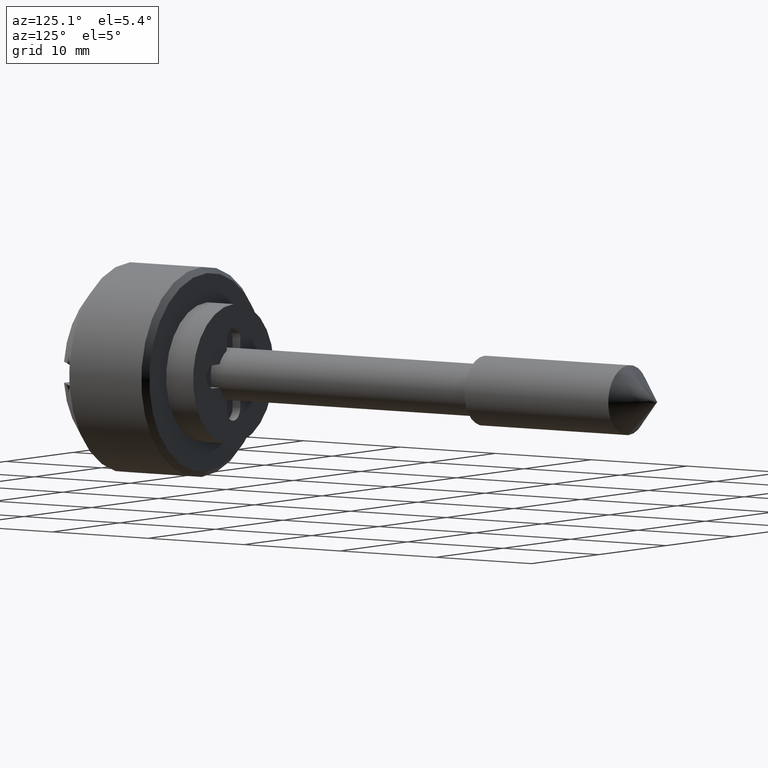
[diagram: clean part render]
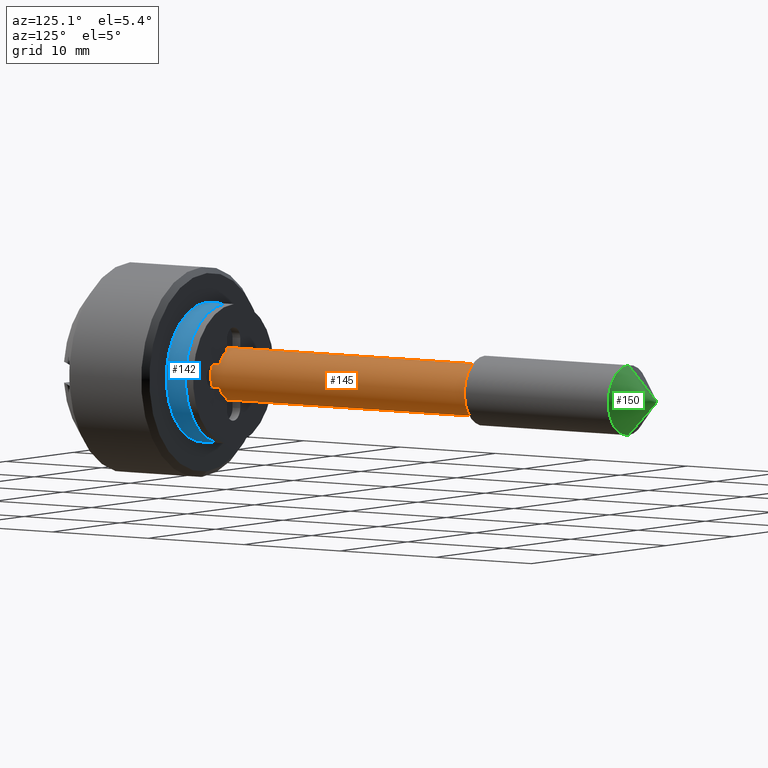
[diagram: same view with three faces highlighted in distinct colors, each labeled with its STEP entity id]
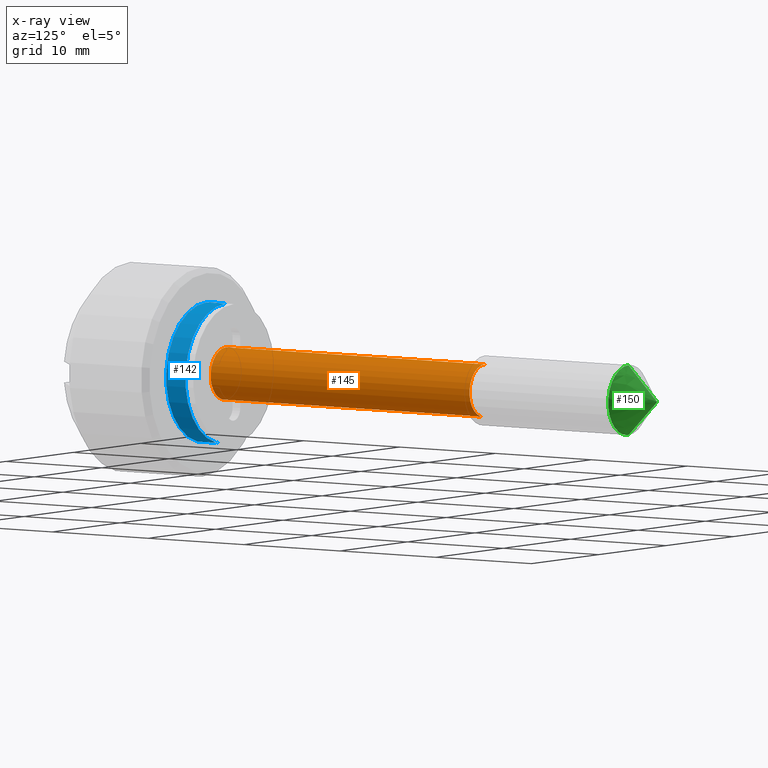
[diagram: x-ray of the same camera — body ghosted, the three highlighted faces saturated]
A machine part, auxiliary view with three faces highlighted in distinct colors.
The next image is the same camera in x-ray (body ghosted, the three faces saturated) — at least one of them is partly hidden behind the body in this view.
Their STEP definitions:

[orange] entity #145 — the highlighted cylindrical surface (edge-blend (fillet) strip) has radius 2.25 mm, axis along (0, 1, 0).
#145=ADVANCED_FACE('',(#490),#489,.T.);
#489=CYLINDRICAL_SURFACE('',#764,2.25000000000E+00);
#490=FACE_OUTER_BOUND('',#765,.T.);
#761=CARTESIAN_POINT('',(1.00000000000E+03,0.00000000000E+00,0.00000000000E+00));
#762=DIRECTION('',(1.00000000000E+00,-0.00000000000E+00,-0.00000000000E+00));
#763=DIRECTION('',(-0.00000000000E+00,-0.00000000000E+00,-1.00000000000E+00));
#764=AXIS2_PLACEMENT_3D('',#761,#762,#763);
#765=EDGE_LOOP('',(#988,#989,#990,#991));
#988=ORIENTED_EDGE('',*,*,#1090,.T.);
#989=ORIENTED_EDGE('',*,*,#1116,.T.);
#990=ORIENTED_EDGE('',*,*,#1095,.F.);
#991=ORIENTED_EDGE('',*,*,#1117,.F.);
#1090=EDGE_CURVE('',#1532,#1533,#1534,.T.);
#1095=EDGE_CURVE('',#1561,#1560,#1568,.T.);
#1116=EDGE_CURVE('',#1533,#1560,#1706,.T.);
#1117=EDGE_CURVE('',#1532,#1561,#1712,.T.);
#1532=VERTEX_POINT('',#2041);
#1533=VERTEX_POINT('',#2042);
#1534=CIRCLE('',#2046,2.25000000000E+00);
#1560=VERTEX_POINT('',#2061);
#1561=VERTEX_POINT('',#2062);
#1568=CIRCLE('',#2070,2.25000000000E+00);
#1706=(BOUNDED_CURVE() B_SPLINE_CURVE(1,(#2151,#2152),.UNSPECIFIED.,.F.,.F.) B_SPLINE_CURVE_WITH_KNOTS((2,2),(8.33333328360E-02,9.16666665505E-01),.UNSPECIFIED.) CURVE() GEOMETRIC_REPRESENTATION_ITEM() RATIONAL_B_SPLINE_CURVE((1.00000000000E+00,1.00000000000E+00)) REPRESENTATION_ITEM('') );
#1712=(BOUNDED_CURVE() B_SPLINE_CURVE(1,(#2153,#2154),.UNSPECIFIED.,.F.,.F.) B_SPLINE_CURVE_WITH_KNOTS((2,2),(8.33333333333E-02,9.16666666667E-01),.UNSPECIFIED.) CURVE() GEOMETRIC_REPRESENTATION_ITEM() RATIONAL_B_SPLINE_CURVE((7.50000000000E-01,7.50000000000E-01)) REPRESENTATION_ITEM('') );
#2041=CARTESIAN_POINT('',(0.00000000000E+00,1.48029736617E-16,2.25000000000E+00));
#2042=CARTESIAN_POINT('',(0.00000000000E+00,0.00000000000E+00,-2.25000000000E+00));
#2043=CARTESIAN_POINT('',(0.00000000000E+00,0.00000000000E+00,0.00000000000E+00));
#2044=DIRECTION('',(1.00000000000E+00,0.00000000000E+00,0.00000000000E+00));
#2045=DIRECTION('',(0.00000000000E+00,-1.22460635382E-16,-1.00000000000E+00));
#2046=AXIS2_PLACEMENT_3D('',#2043,#2044,#2045);
#2061=CARTESIAN_POINT('',(2.70000000000E+01,0.00000000000E+00,-2.25000000000E+00));
#2062=CARTESIAN_POINT('',(2.70000000000E+01,1.48029736617E-16,2.25000000000E+00));
#2067=CARTESIAN_POINT('',(2.70000000000E+01,0.00000000000E+00,0.00000000000E+00));
#2068=DIRECTION('',(1.00000000000E+00,0.00000000000E+00,0.00000000000E+00));
#2069=DIRECTION('',(0.00000000000E+00,-1.22460635382E-16,-1.00000000000E+00));
#2070=AXIS2_PLACEMENT_3D('',#2067,#2068,#2069);
#2151=CARTESIAN_POINT('',(-1.61148925315E-08,0.00000000000E+00,-2.25000000000E+00));
#2152=CARTESIAN_POINT('',(2.69999999624E+01,0.00000000000E+00,-2.25000000000E+00));
#2153=CARTESIAN_POINT('',(0.00000000000E+00,-1.48029736617E-16,2.25000000000E+00));
#2154=CARTESIAN_POINT('',(2.70000000000E+01,-1.48029736617E-16,2.25000000000E+00));

[blue] entity #142 — the highlighted cylindrical surface (partial cylindrical patch) has radius 6 mm, axis along (0, -1, -0).
#142=ADVANCED_FACE('',(#460),#459,.T.);
#459=CYLINDRICAL_SURFACE('',#749,6.00000000000E+00);
#460=FACE_OUTER_BOUND('',#750,.T.);
#746=CARTESIAN_POINT('',(-1.00000000000E+03,0.00000000000E+00,0.00000000000E+00));
#747=DIRECTION('',(-1.00000000000E+00,-0.00000000000E+00,-0.00000000000E+00));
#748=DIRECTION('',(0.00000000000E+00,1.22464679915E-16,-1.00000000000E+00));
#749=AXIS2_PLACEMENT_3D('',#746,#747,#748);
#750=EDGE_LOOP('',(#976,#977,#978,#979));
#976=ORIENTED_EDGE('',*,*,#1086,.F.);
#977=ORIENTED_EDGE('',*,*,#1114,.F.);
#978=ORIENTED_EDGE('',*,*,#1088,.F.);
#979=ORIENTED_EDGE('',*,*,#1115,.T.);
#1086=EDGE_CURVE('',#1504,#1505,#1506,.T.);
#1088=EDGE_CURVE('',#1518,#1519,#1520,.T.);
#1114=EDGE_CURVE('',#1519,#1504,#1694,.T.);
#1115=EDGE_CURVE('',#1518,#1505,#1700,.T.);
#1504=VERTEX_POINT('',#2021);
#1505=VERTEX_POINT('',#2022);
#1506=CIRCLE('',#2026,6.00000000000E+00);
#1518=VERTEX_POINT('',#2031);
#1519=VERTEX_POINT('',#2032);
#1520=CIRCLE('',#2036,6.00000000000E+00);
#1694=(BOUNDED_CURVE() B_SPLINE_CURVE(1,(#2147,#2148),.UNSPECIFIED.,.F.,.F.) B_SPLINE_CURVE_WITH_KNOTS((2,2),(8.33333134656E-02,9.16666653270E-01),.UNSPECIFIED.) CURVE() GEOMETRIC_REPRESENTATION_ITEM() RATIONAL_B_SPLINE_CURVE((1.00000000000E+00,1.00000000000E+00)) REPRESENTATION_ITEM('') );
#1700=(BOUNDED_CURVE() B_SPLINE_CURVE(1,(#2149,#2150),.UNSPECIFIED.,.F.,.F.) B_SPLINE_CURVE_WITH_KNOTS((2,2),(8.33333333333E-02,9.16666666667E-01),.UNSPECIFIED.) CURVE() GEOMETRIC_REPRESENTATION_ITEM() RATIONAL_B_SPLINE_CURVE((7.50000000000E-01,7.50000000000E-01)) REPRESENTATION_ITEM('') );
#2021=CARTESIAN_POINT('',(-2.00000000000E+00,0.00000000000E+00,-6.00000000000E+00));
#2022=CARTESIAN_POINT('',(-2.00000000000E+00,1.18423789293E-15,6.00000000000E+00));
#2023=CARTESIAN_POINT('',(-2.00000000000E+00,0.00000000000E+00,0.00000000000E+00));
#2024=DIRECTION('',(-1.00000000000E+00,0.00000000000E+00,-0.00000000000E+00));
#2025=DIRECTION('',(0.00000000000E+00,-1.22460635382E-16,-1.00000000000E+00));
#2026=AXIS2_PLACEMENT_3D('',#2023,#2024,#2025);
#2031=CARTESIAN_POINT('',(0.00000000000E+00,0.00000000000E+00,6.00000000000E+00));
#2032=CARTESIAN_POINT('',(0.00000000000E+00,1.18423789293E-15,-6.00000000000E+00));
#2033=CARTESIAN_POINT('',(0.00000000000E+00,0.00000000000E+00,0.00000000000E+00));
#2034=DIRECTION('',(1.00000000000E+00,0.00000000000E+00,-0.00000000000E+00));
#2035=DIRECTION('',(0.00000000000E+00,-1.22460635382E-16,1.00000000000E+00));
#2036=AXIS2_PLACEMENT_3D('',#2033,#2034,#2035);
#2147=CARTESIAN_POINT('',(4.76825442464E-08,7.34788079488E-16,-6.00000000000E+00));
#2148=CARTESIAN_POINT('',(-1.99999996785E+00,7.34788079488E-16,-6.00000000000E+00));
#2149=CARTESIAN_POINT('',(3.70074341542E-17,0.00000000000E+00,6.00000000000E+00));
#2150=CARTESIAN_POINT('',(-2.00000000000E+00,0.00000000000E+00,6.00000000000E+00));

[green] entity #150 — the highlighted face is a freeform B-spline surface patch.
#150=ADVANCED_FACE('',(#540),#539,.T.);
#539=( BOUNDED_SURFACE() B_SPLINE_SURFACE( 2,1,((#798,#799),(#800,#801),(#802,#803),(#804,#805),(#806,#807)), .UNSPECIFIED.,.F.,.F.,.F.) B_SPLINE_SURFACE_WITH_KNOTS((3,2,3),(2,2),(0.00000000000E+00,5.00000000000E-01,1.00000000000E+00),(0.00000000000E+00,1.00000000000E+00), .UNSPECIFIED. ) GEOMETRIC_REPRESENTATION_ITEM() RATIONAL_B_SPLINE_SURFACE(((1.00000000000E+00,1.00000000000E+00),(7.07106781187E-01,7.07106781187E-01),(1.00000000000E+00,1.00000000000E+00),(7.07106781187E-01,7.07106781187E-01),(1.00000000000E+00,1.00000000000E+00))) REPRESENTATION_ITEM('') SURFACE() );
#540=FACE_OUTER_BOUND('',#808,.T.);
#798=CARTESIAN_POINT('',(4.50000000000E+01,0.00000000000E+00,0.00000000000E+00));
#799=CARTESIAN_POINT('',(4.07573593129E+01,-1.03914726748E-15,-4.24264068712E+00));
#800=CARTESIAN_POINT('',(4.50000000000E+01,0.00000000000E+00,0.00000000000E+00));
#801=CARTESIAN_POINT('',(4.07573593129E+01,-4.24264068712E+00,-4.24264068712E+00));
#802=CARTESIAN_POINT('',(4.50000000000E+01,0.00000000000E+00,0.00000000000E+00));
#803=CARTESIAN_POINT('',(4.07573593129E+01,-4.24264068712E+00,7.79360450612E-16));
#804=CARTESIAN_POINT('',(4.50000000000E+01,0.00000000000E+00,0.00000000000E+00));
#805=CARTESIAN_POINT('',(4.07573593129E+01,-4.24264068712E+00,4.24264068712E+00));
#806=CARTESIAN_POINT('',(4.50000000000E+01,0.00000000000E+00,0.00000000000E+00));
#807=CARTESIAN_POINT('',(4.07573593129E+01,5.19573633741E-16,4.24264068712E+00));
#808=EDGE_LOOP('',(#1016,#1017,#1018));
#1016=ORIENTED_EDGE('',*,*,#1124,.F.);
#1017=ORIENTED_EDGE('',*,*,#1125,.F.);
#1018=ORIENTED_EDGE('',*,*,#1126,.T.);
#1124=EDGE_CURVE('',#1756,#1757,#1758,.T.);
#1125=EDGE_CURVE('',#1764,#1756,#1765,.T.);
#1126=EDGE_CURVE('',#1764,#1757,#1771,.T.);
#1756=VERTEX_POINT('',#2173);
#1757=VERTEX_POINT('',#2174);
#1758=CIRCLE('',#2178,3.00000000000E+00);
#1764=VERTEX_POINT('',#2179);
#1765=(BOUNDED_CURVE() B_SPLINE_CURVE(1,(#2180,#2181),.UNSPECIFIED.,.F.,.F.) B_SPLINE_CURVE_WITH_KNOTS((2,2),(0.00000000000E+00,7.07106783987E-01),.UNSPECIFIED.) CURVE() GEOMETRIC_REPRESENTATION_ITEM() RATIONAL_B_SPLINE_CURVE((1.00000000000E+00,1.00000000000E+00)) REPRESENTATION_ITEM('') );
#1771=(BOUNDED_CURVE() B_SPLINE_CURVE(1,(#2182,#2183),.UNSPECIFIED.,.F.,.F.) B_SPLINE_CURVE_WITH_KNOTS((2,2),(0.00000000000E+00,7.07106780467E-01),.UNSPECIFIED.) CURVE() GEOMETRIC_REPRESENTATION_ITEM() RATIONAL_B_SPLINE_CURVE((7.50000000000E-01,7.50000000000E-01)) REPRESENTATION_ITEM('') );
#2173=CARTESIAN_POINT('',(4.20000000000E+01,-1.48029736617E-16,-3.00000000000E+00));
#2174=CARTESIAN_POINT('',(4.20000000000E+01,0.00000000000E+00,3.00000000000E+00));
#2175=CARTESIAN_POINT('',(4.20000000000E+01,0.00000000000E+00,0.00000000000E+00));
#2176=DIRECTION('',(-1.00000000000E+00,0.00000000000E+00,0.00000000000E+00));
#2177=DIRECTION('',(0.00000000000E+00,-1.22460635382E-16,1.00000000000E+00));
#2178=AXIS2_PLACEMENT_3D('',#2175,#2176,#2177);
#2179=CARTESIAN_POINT('',(4.50000000000E+01,0.00000000000E+00,0.00000000000E+00));
#2180=CARTESIAN_POINT('',(4.50000000000E+01,0.00000000000E+00,0.00000000000E+00));
#2181=CARTESIAN_POINT('',(4.19999999881E+01,-7.34763815203E-16,-3.00000001188E+00));
#2182=CARTESIAN_POINT('',(4.50000000000E+01,0.00000000000E+00,0.00000000000E+00));
#2183=CARTESIAN_POINT('',(4.20000000031E+01,8.37382643779E-16,2.99999999695E+00));